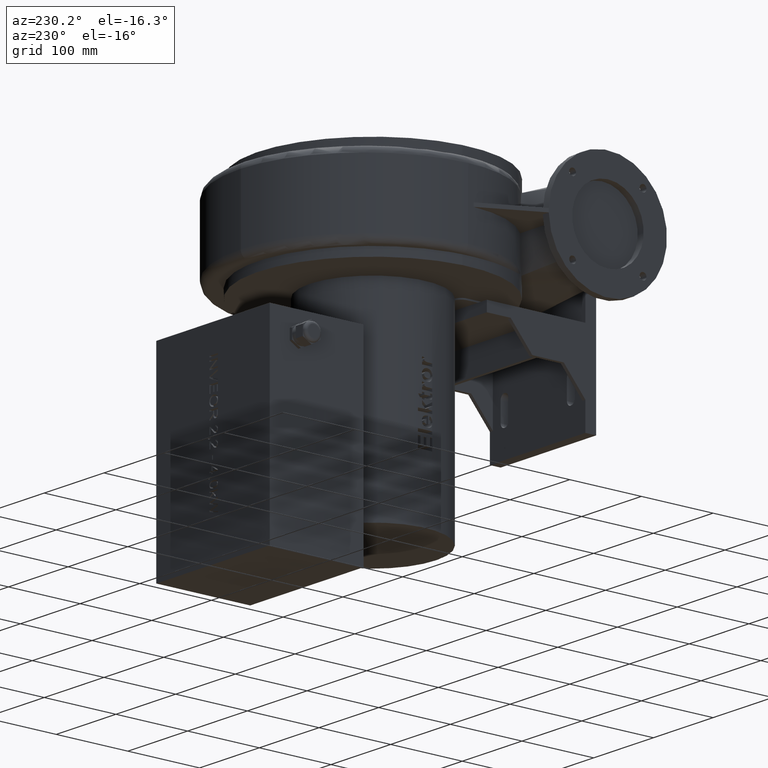
[diagram: clean part render]
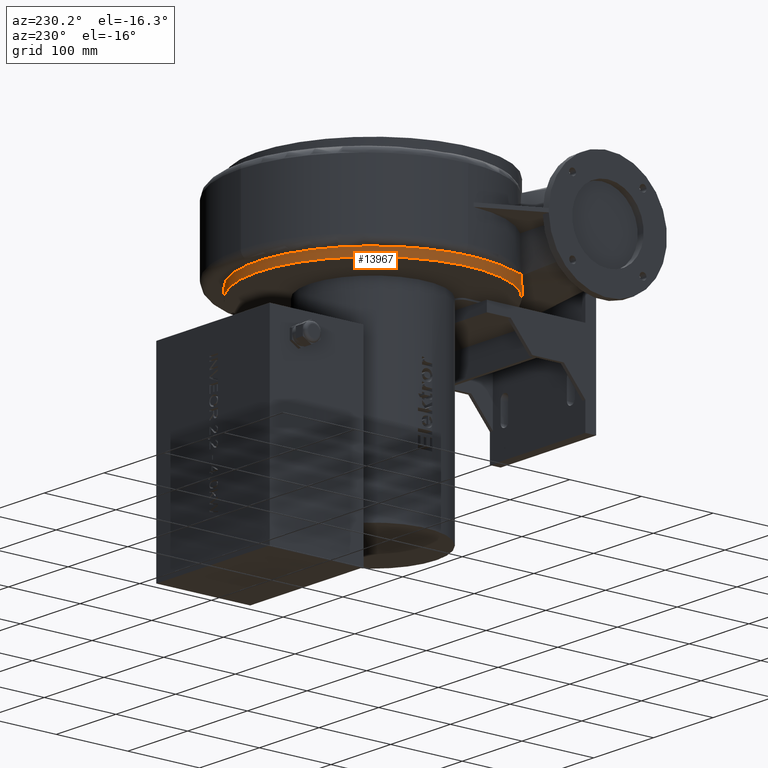
[diagram: same view with one face highlighted and labeled with its STEP entity id]
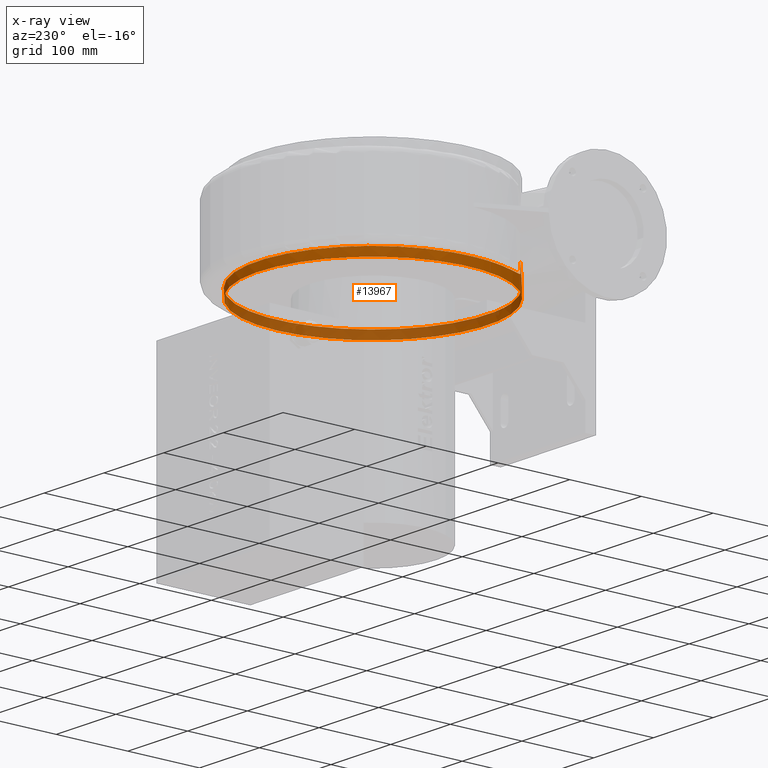
[diagram: x-ray of the same camera — body ghosted, the highlighted face saturated]
A machine part, auxiliary view. The second image highlights one B-rep face of the part: STEP entity #13967.
The next image is the same camera in x-ray: the body ghosted, the highlighted face saturated — about 39% of this face is hidden behind the body in this view.
In plain terms, the highlighted cylindrical surface (bore or boss wall) has radius 160 mm, axis along (-0, -0, 1).
Its self-contained STEP definition (entity closure, byte-faithful):
#76=CYLINDRICAL_SURFACE('',#14781,160.);
#195=CIRCLE('',#14723,160.);
#231=CIRCLE('',#14782,160.);
#383=FACE_BOUND('',#2153,.T.);
#665=B_SPLINE_CURVE_WITH_KNOTS('',3,(#21308,#21309,#21310,#21311),
 .UNSPECIFIED.,.F.,.F.,(4,4),(-1.82421022720397,0.),.UNSPECIFIED.);
#672=B_SPLINE_CURVE_WITH_KNOTS('',3,(#21416,#21417,#21418,#21419,#21420,
#21421,#21422,#21423,#21424,#21425,#21426,#21427,#21428,#21429,#21430,#21431),
 .UNSPECIFIED.,.F.,.F.,(4,2,2,2,2,2,2,4),(-4.61334181570676,-3.00539951464346,
-1.17720322077871,-0.404549094868453,-0.17049548418605,-0.0825610007422693,
-0.0358278552960577,-4.30580434418459E-7),.UNSPECIFIED.);
#673=B_SPLINE_CURVE_WITH_KNOTS('',3,(#21433,#21434,#21435,#21436),
 .UNSPECIFIED.,.F.,.F.,(4,4),(-1.56871192667796,-0.000999386847928538),
 .UNSPECIFIED.);
#674=B_SPLINE_CURVE_WITH_KNOTS('',3,(#21439,#21440,#21441,#21442,#21443,
#21444,#21445,#21446),.UNSPECIFIED.,.F.,.F.,(4,2,2,4),(-12.8952128189277,
-8.43296680430879,-3.6046183825822,0.),.UNSPECIFIED.);
#1343=FACE_OUTER_BOUND('',#2152,.T.);
#2152=EDGE_LOOP('',(#10347));
#2153=EDGE_LOOP('',(#10348,#10349,#10350,#10351,#10352,#10353));
#3294=LINE('',#21122,#4627);
#4627=VECTOR('',#16495,16.7665138119953);
#5976=VERTEX_POINT('',#21091);
#5988=VERTEX_POINT('',#21119);
#5989=VERTEX_POINT('',#21121);
#6019=VERTEX_POINT('',#21307);
#6038=VERTEX_POINT('',#21415);
#6039=VERTEX_POINT('',#21432);
#6040=VERTEX_POINT('',#21437);
#7566=EDGE_CURVE('',#5976,#5976,#195,.T.);
#7578=EDGE_CURVE('',#5988,#5989,#3294,.T.);
#7615=EDGE_CURVE('',#5989,#6019,#665,.T.);
#7645=EDGE_CURVE('',#6038,#5988,#672,.T.);
#7646=EDGE_CURVE('',#6039,#6038,#673,.T.);
#7647=EDGE_CURVE('',#6040,#6039,#231,.T.);
#7648=EDGE_CURVE('',#6019,#6040,#674,.T.);
#10347=ORIENTED_EDGE('',*,*,#7566,.T.);
#10348=ORIENTED_EDGE('',*,*,#7645,.F.);
#10349=ORIENTED_EDGE('',*,*,#7646,.F.);
#10350=ORIENTED_EDGE('',*,*,#7647,.F.);
#10351=ORIENTED_EDGE('',*,*,#7648,.F.);
#10352=ORIENTED_EDGE('',*,*,#7615,.F.);
#10353=ORIENTED_EDGE('',*,*,#7578,.F.);
#13967=ADVANCED_FACE('',(#1343,#383),#76,.T.);
#14723=AXIS2_PLACEMENT_3D('',#21092,#16462,#16463);
#14781=AXIS2_PLACEMENT_3D('',#21414,#16601,#16602);
#14782=AXIS2_PLACEMENT_3D('',#21438,#16603,#16604);
#16462=DIRECTION('center_axis',(-1.22464679914736E-16,-1.29953312800048E-15,
1.));
#16463=DIRECTION('ref_axis',(-1.,-1.01654872413676E-31,-1.22464679914736E-16));
#16495=DIRECTION('',(-1.22464679914736E-16,-1.29953312800048E-15,1.));
#16601=DIRECTION('center_axis',(-1.22464679914736E-16,-1.29953312800048E-15,
1.));
#16602=DIRECTION('ref_axis',(-1.,-1.01654872413676E-31,-1.22464679914736E-16));
#16603=DIRECTION('center_axis',(-1.22464679914736E-16,-1.29953312800048E-15,
1.));
#16604=DIRECTION('ref_axis',(-1.,-1.01654872413676E-31,-1.22464679914736E-16));
#21091=CARTESIAN_POINT('',(184.435848534473,137.787887173537,2.99571509386444));
#21092=CARTESIAN_POINT('Origin',(24.4358485344729,137.787887173537,2.99571509386442));
#21119=CARTESIAN_POINT('',(-94.9046289802166,31.2146709015027,24.9957150938643));
#21121=CARTESIAN_POINT('',(-94.9046289779388,31.2146708991702,41.7622289058596));
#21122=CARTESIAN_POINT('',(-94.9046289802166,31.2146709015026,69.9957150938643));
#21307=CARTESIAN_POINT('',(-89.5754795057506,25.5318535784359,23.8004073218209));
#21308=CARTESIAN_POINT('Ctrl Pts',(-94.9046289781896,31.2146708992327,41.7622289057883));
#21309=CARTESIAN_POINT('Ctrl Pts',(-93.4403958940191,29.5750255777949,35.1732905597096));
#21310=CARTESIAN_POINT('Ctrl Pts',(-91.5693720180795,27.5569236438902,29.1761310479507));
#21311=CARTESIAN_POINT('Ctrl Pts',(-89.5754795057506,25.5318535784359,23.8004073218209));
#21414=CARTESIAN_POINT('Origin',(24.4358485344729,137.787887173537,69.9957150938644));
#21415=CARTESIAN_POINT('',(-135.364026309033,145.787887173537,15.0277564144393));
#21416=CARTESIAN_POINT('Ctrl Pts',(-135.364026309033,145.787887173537,15.0277564144393));
#21417=CARTESIAN_POINT('Ctrl Pts',(-136.322155568949,126.649270196211,15.1046411123479));
#21418=CARTESIAN_POINT('Ctrl Pts',(-133.832957706282,107.500020581775,15.3213624084051));
#21419=CARTESIAN_POINT('Ctrl Pts',(-121.427174844728,68.5232325534771,16.8168243967872));
#21420=CARTESIAN_POINT('Ctrl Pts',(-111.853639198234,53.0762680183509,18.1301739252949));
#21421=CARTESIAN_POINT('Ctrl Pts',(-101.519787492437,38.9844048746052,20.7458600313566));
#21422=CARTESIAN_POINT('Ctrl Pts',(-98.848574911325,35.7673111284214,21.6231942534138));
#21423=CARTESIAN_POINT('Ctrl Pts',(-96.5672675699038,33.103070277291,22.8723729809897));
#21424=CARTESIAN_POINT('Ctrl Pts',(-95.993334749974,32.4444878133835,23.2390931756685));
#21425=CARTESIAN_POINT('Ctrl Pts',(-95.4036459548351,31.7758367217193,23.8307714349443));
#21426=CARTESIAN_POINT('Ctrl Pts',(-95.2370754085147,31.5879496354936,24.0275277173505));
#21427=CARTESIAN_POINT('Ctrl Pts',(-95.0454110845602,31.3724812645575,24.3712136445908));
#21428=CARTESIAN_POINT('Ctrl Pts',(-94.9871684260732,31.307155499612,24.5043850865134));
#21429=CARTESIAN_POINT('Ctrl Pts',(-94.920657251721,31.2326132263888,24.7608123810335));
#21430=CARTESIAN_POINT('Ctrl Pts',(-94.9046289802165,31.2146709015026,24.8762903336675));
#21431=CARTESIAN_POINT('Ctrl Pts',(-94.9046289802167,31.2146709015028,24.995715093866));
#21432=CARTESIAN_POINT('',(-133.819285994609,161.352954438078,14.9957150938644));
#21433=CARTESIAN_POINT('Ctrl Pts',(-133.819285994609,161.352954438078,14.9957150938644));
#21434=CARTESIAN_POINT('Ctrl Pts',(-134.586378515263,156.201416838393,14.9957150938644));
#21435=CARTESIAN_POINT('Ctrl Pts',(-135.102743751021,151.007002182166,15.0067899004396));
#21436=CARTESIAN_POINT('Ctrl Pts',(-135.364026309033,145.787887173537,15.0277564144393));
#21437=CARTESIAN_POINT('',(12.4358485344729,-21.7614782278957,14.9957150938642));
#21438=CARTESIAN_POINT('Origin',(24.4358485344729,137.787887173537,14.9957150938644));
#21439=CARTESIAN_POINT('Ctrl Pts',(-89.5754795057506,25.5318535784359,23.8004073218209));
#21440=CARTESIAN_POINT('Ctrl Pts',(-82.3085530664726,18.15129765125,19.8290083559379));
#21441=CARTESIAN_POINT('Ctrl Pts',(-73.5343186764829,10.6661349562761,17.6745929396436));
#21442=CARTESIAN_POINT('Ctrl Pts',(-51.6108187440668,-3.64055235631753,
15.2146312205335));
#21443=CARTESIAN_POINT('Ctrl Pts',(-38.1991822414054,-10.3175568806056,
15.0545686613616));
#21444=CARTESIAN_POINT('Ctrl Pts',(-11.3789414036777,-18.6132027964579,
14.9744294098972));
#21445=CARTESIAN_POINT('Ctrl Pts',(0.454296405372416,-20.8603237470399,
15.0017797315135));
#21446=CARTESIAN_POINT('Ctrl Pts',(12.4358485344729,-21.7614782278957,14.9957150938642));